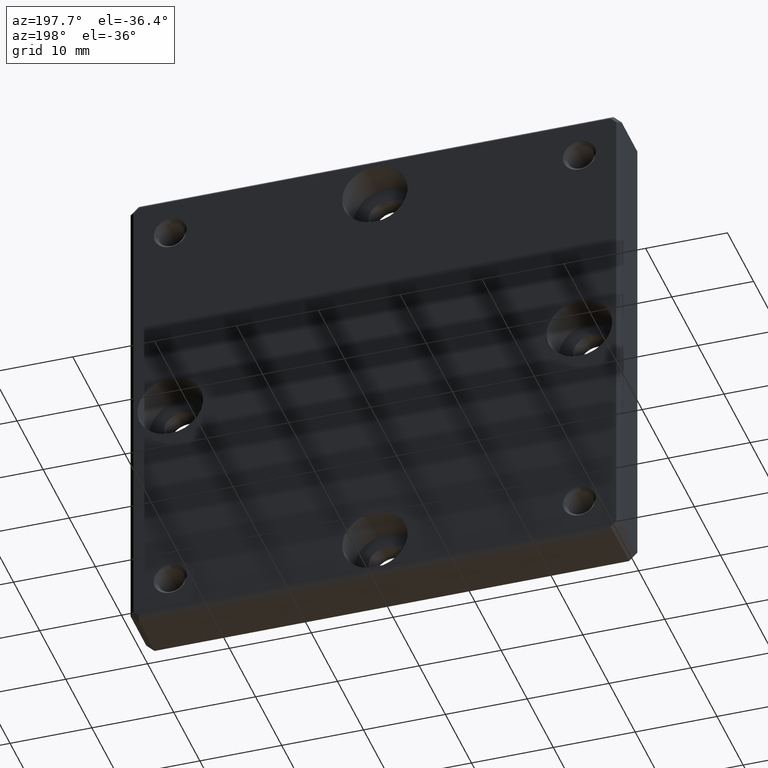
[diagram: clean part render]
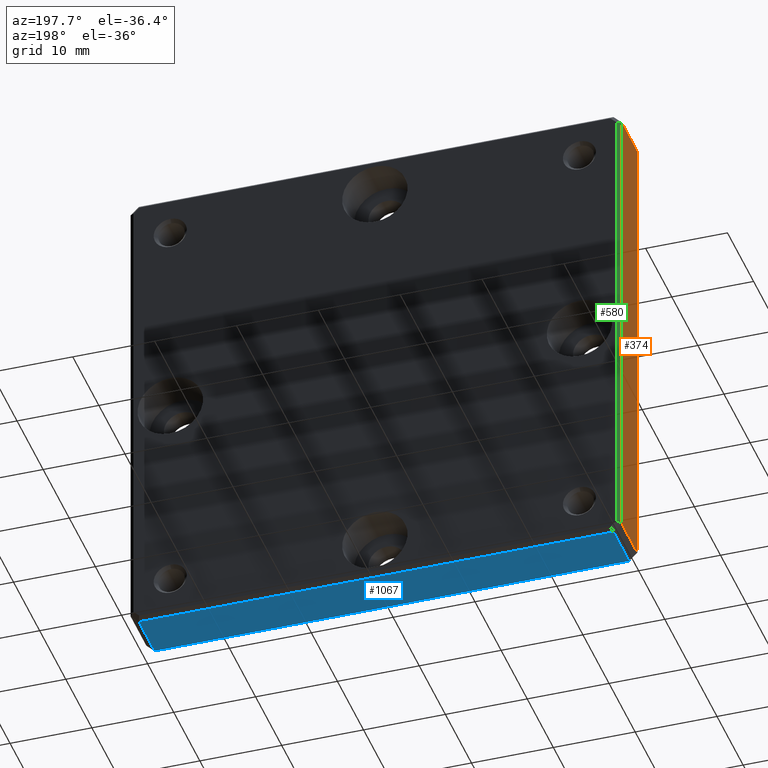
[diagram: same view with three faces highlighted in distinct colors, each labeled with its STEP entity id]
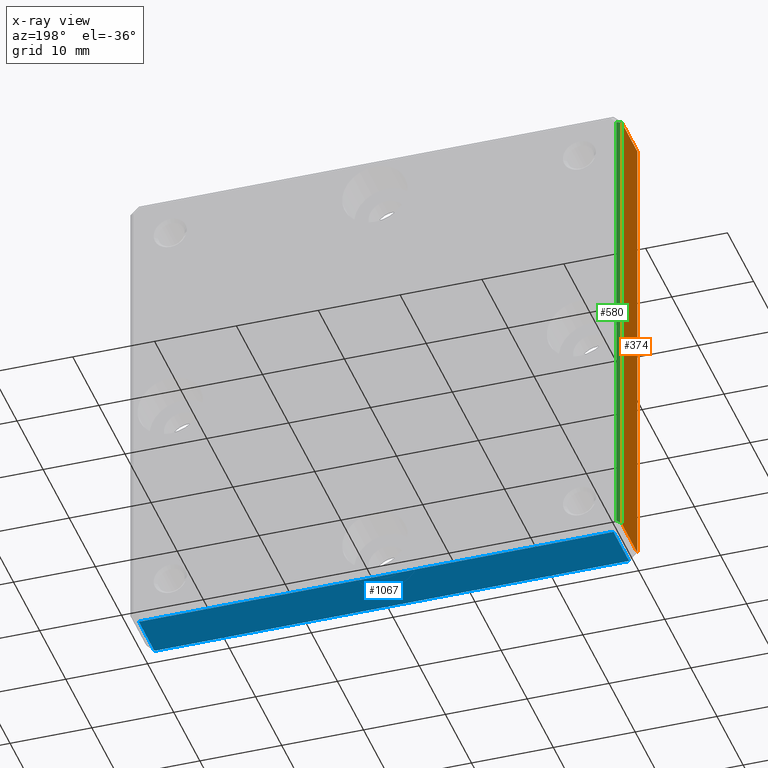
[diagram: x-ray of the same camera — body ghosted, the three highlighted faces saturated]
A machine part, auxiliary view with three faces highlighted in distinct colors.
The next image is the same camera in x-ray (body ghosted, the three faces saturated) — at least one of them is partly hidden behind the body in this view.
Their STEP definitions:

[orange] entity #374 — the highlighted planar face has unit normal (1, 0, -0).
#46 = VECTOR ( 'NONE', #925, 1000.000000000000000 ) ;
#83 = AXIS2_PLACEMENT_3D ( 'NONE', #871, #953, #654 ) ;
#142 = CARTESIAN_POINT ( 'NONE',  ( -29.99999999999999289, 0.4999999999999935052, 28.99999999999998579 ) ) ;
#167 = EDGE_CURVE ( 'NONE', #711, #650, #326, .T. ) ;
#194 = DIRECTION ( 'NONE',  ( 0.000000000000000000, -1.000000000000000000, 0.000000000000000000 ) ) ;
#202 = PLANE ( 'NONE',  #83 ) ;
#275 = ORIENTED_EDGE ( 'NONE', *, *, #935, .T. ) ;
#277 = DIRECTION ( 'NONE',  ( -1.156482317317871478E-16, 0.000000000000000000, -1.000000000000000000 ) ) ;
#311 = CARTESIAN_POINT ( 'NONE',  ( -30.00000000000000000, 6.500000000000000000, -29.00000000000001066 ) ) ;
#326 = LINE ( 'NONE', #1214, #46 ) ;
#327 = EDGE_CURVE ( 'NONE', #650, #1092, #1156, .T. ) ;
#340 = VECTOR ( 'NONE', #194, 1000.000000000000000 ) ;
#374 = ADVANCED_FACE ( 'NONE', ( #661 ), #202, .F. ) ;
#482 = LINE ( 'NONE', #682, #340 ) ;
#561 = CARTESIAN_POINT ( 'NONE',  ( -30.00000000000000000, 0.4999999999999935052, -30.00000000000000711 ) ) ;
#631 = VECTOR ( 'NONE', #277, 1000.000000000000000 ) ;
#635 = CARTESIAN_POINT ( 'NONE',  ( -29.99999999999999289, 6.500000000000000000, 28.99999999999998579 ) ) ;
#650 = VERTEX_POINT ( 'NONE', #635 ) ;
#654 = DIRECTION ( 'NONE',  ( -1.156482317317871478E-16, 0.000000000000000000, -1.000000000000000000 ) ) ;
#657 = EDGE_CURVE ( 'NONE', #734, #711, #747, .T. ) ;
#661 = FACE_OUTER_BOUND ( 'NONE', #683, .T. ) ;
#682 = CARTESIAN_POINT ( 'NONE',  ( -30.00000000000000000, 7.000000000000000000, -29.00000000000001066 ) ) ;
#683 = EDGE_LOOP ( 'NONE', ( #275, #1006, #1153, #1003 ) ) ;
#711 = VERTEX_POINT ( 'NONE', #142 ) ;
#726 = DIRECTION ( 'NONE',  ( 1.156482317317871478E-16, 0.000000000000000000, 1.000000000000000000 ) ) ;
#734 = VERTEX_POINT ( 'NONE', #1239 ) ;
#747 = LINE ( 'NONE', #561, #861 ) ;
#861 = VECTOR ( 'NONE', #726, 1000.000000000000000 ) ;
#871 = CARTESIAN_POINT ( 'NONE',  ( -30.00000000000000000, 7.000000000000000000, -30.00000000000000711 ) ) ;
#925 = DIRECTION ( 'NONE',  ( 0.000000000000000000, 1.000000000000000000, 0.000000000000000000 ) ) ;
#935 = EDGE_CURVE ( 'NONE', #1092, #734, #482, .T. ) ;
#953 = DIRECTION ( 'NONE',  ( 1.000000000000000000, 0.000000000000000000, -1.156482317317871478E-16 ) ) ;
#983 = CARTESIAN_POINT ( 'NONE',  ( -30.00000000000000000, 6.500000000000000000, -29.00000000000001066 ) ) ;
#1003 = ORIENTED_EDGE ( 'NONE', *, *, #327, .T. ) ;
#1006 = ORIENTED_EDGE ( 'NONE', *, *, #657, .T. ) ;
#1092 = VERTEX_POINT ( 'NONE', #311 ) ;
#1153 = ORIENTED_EDGE ( 'NONE', *, *, #167, .T. ) ;
#1156 = LINE ( 'NONE', #983, #631 ) ;
#1214 = CARTESIAN_POINT ( 'NONE',  ( -29.99999999999999289, 7.000000000000000000, 28.99999999999998579 ) ) ;
#1239 = CARTESIAN_POINT ( 'NONE',  ( -30.00000000000000000, 0.4999999999999935052, -29.00000000000001066 ) ) ;

[blue] entity #1067 — the highlighted planar face has unit normal (0, 0, 1).
#72 = LINE ( 'NONE', #762, #157 ) ;
#152 = DIRECTION ( 'NONE',  ( -0.000000000000000000, 1.000000000000000000, 0.000000000000000000 ) ) ;
#157 = VECTOR ( 'NONE', #436, 1000.000000000000000 ) ;
#161 = DIRECTION ( 'NONE',  ( 0.000000000000000000, 0.000000000000000000, 1.000000000000000000 ) ) ;
#176 = LINE ( 'NONE', #834, #1181 ) ;
#196 = ORIENTED_EDGE ( 'NONE', *, *, #1078, .T. ) ;
#206 = EDGE_CURVE ( 'NONE', #404, #984, #812, .T. ) ;
#305 = EDGE_CURVE ( 'NONE', #1185, #698, #435, .T. ) ;
#320 = DIRECTION ( 'NONE',  ( 0.000000000000000000, -1.000000000000000000, 0.000000000000000000 ) ) ;
#358 = CARTESIAN_POINT ( 'NONE',  ( 28.99999999999999645, 0.4999999999999935052, -30.00000000000000711 ) ) ;
#363 = PLANE ( 'NONE',  #649 ) ;
#377 = VECTOR ( 'NONE', #320, 1000.000000000000000 ) ;
#404 = VERTEX_POINT ( 'NONE', #855 ) ;
#435 = LINE ( 'NONE', #1221, #442 ) ;
#436 = DIRECTION ( 'NONE',  ( 1.000000000000000000, 0.000000000000000000, 0.000000000000000000 ) ) ;
#442 = VECTOR ( 'NONE', #152, 1000.000000000000000 ) ;
#444 = DIRECTION ( 'NONE',  ( -1.000000000000000000, 0.000000000000000000, 0.000000000000000000 ) ) ;
#552 = FACE_OUTER_BOUND ( 'NONE', #697, .T. ) ;
#611 = ORIENTED_EDGE ( 'NONE', *, *, #1043, .T. ) ;
#649 = AXIS2_PLACEMENT_3D ( 'NONE', #655, #161, #941 ) ;
#655 = CARTESIAN_POINT ( 'NONE',  ( -30.00000000000000000, 7.000000000000000000, -30.00000000000000711 ) ) ;
#697 = EDGE_LOOP ( 'NONE', ( #975, #611, #1218, #196 ) ) ;
#698 = VERTEX_POINT ( 'NONE', #757 ) ;
#757 = CARTESIAN_POINT ( 'NONE',  ( -29.00000000000000355, 6.500000000000000000, -30.00000000000000711 ) ) ;
#762 = CARTESIAN_POINT ( 'NONE',  ( 28.99999999999999645, 6.500000000000000000, -30.00000000000000711 ) ) ;
#812 = LINE ( 'NONE', #1201, #377 ) ;
#834 = CARTESIAN_POINT ( 'NONE',  ( -30.00000000000000000, 0.4999999999999935052, -30.00000000000000711 ) ) ;
#855 = CARTESIAN_POINT ( 'NONE',  ( 28.99999999999999645, 6.500000000000000000, -30.00000000000000711 ) ) ;
#941 = DIRECTION ( 'NONE',  ( 1.000000000000000000, 0.000000000000000000, -0.000000000000000000 ) ) ;
#967 = CARTESIAN_POINT ( 'NONE',  ( -29.00000000000000355, 0.4999999999999935052, -30.00000000000000711 ) ) ;
#975 = ORIENTED_EDGE ( 'NONE', *, *, #206, .T. ) ;
#984 = VERTEX_POINT ( 'NONE', #358 ) ;
#1043 = EDGE_CURVE ( 'NONE', #984, #1185, #176, .T. ) ;
#1067 = ADVANCED_FACE ( 'NONE', ( #552 ), #363, .F. ) ;
#1078 = EDGE_CURVE ( 'NONE', #698, #404, #72, .T. ) ;
#1181 = VECTOR ( 'NONE', #444, 1000.000000000000000 ) ;
#1185 = VERTEX_POINT ( 'NONE', #967 ) ;
#1201 = CARTESIAN_POINT ( 'NONE',  ( 28.99999999999999645, 7.000000000000000000, -30.00000000000000711 ) ) ;
#1218 = ORIENTED_EDGE ( 'NONE', *, *, #305, .T. ) ;
#1221 = CARTESIAN_POINT ( 'NONE',  ( -29.00000000000000355, 7.000000000000000000, -30.00000000000000711 ) ) ;

[green] entity #580 — the highlighted planar face has unit normal (-0.7071, 0.7071, 0).
#4 = AXIS2_PLACEMENT_3D ( 'NONE', #306, #1001, #901 ) ;
#28 = LINE ( 'NONE', #705, #221 ) ;
#103 = VECTOR ( 'NONE', #134, 1000.000000000000114 ) ;
#127 = CARTESIAN_POINT ( 'NONE',  ( -24.00794076169397684, 12.49205923830609777, 26.51800779695069110 ) ) ;
#134 = DIRECTION ( 'NONE',  ( -0.6785983445458440011, -0.6785983445458533270, 0.2810846377148124575 ) ) ;
#190 = CARTESIAN_POINT ( 'NONE',  ( -29.50000000000000711, 7.000000000000000000, -28.79289321881346808 ) ) ;
#219 = PLANE ( 'NONE',  #4 ) ;
#221 = VECTOR ( 'NONE', #807, 1000.000000000000000 ) ;
#277 = DIRECTION ( 'NONE',  ( -1.156482317317871478E-16, 0.000000000000000000, -1.000000000000000000 ) ) ;
#299 = ORIENTED_EDGE ( 'NONE', *, *, #752, .T. ) ;
#306 = CARTESIAN_POINT ( 'NONE',  ( -29.50000000000000355, 7.000000000000000000, 3.411622836087721145E-15 ) ) ;
#311 = CARTESIAN_POINT ( 'NONE',  ( -30.00000000000000000, 6.500000000000000000, -29.00000000000001066 ) ) ;
#327 = EDGE_CURVE ( 'NONE', #650, #1092, #1156, .T. ) ;
#330 = LINE ( 'NONE', #127, #103 ) ;
#352 = LINE ( 'NONE', #658, #1142 ) ;
#447 = DIRECTION ( 'NONE',  ( -0.6785983445458426688, -0.6785983445458522167, -0.2810846377148182307 ) ) ;
#463 = ORIENTED_EDGE ( 'NONE', *, *, #602, .F. ) ;
#519 = EDGE_LOOP ( 'NONE', ( #299, #923, #463, #536 ) ) ;
#521 = EDGE_CURVE ( 'NONE', #806, #869, #28, .T. ) ;
#536 = ORIENTED_EDGE ( 'NONE', *, *, #521, .F. ) ;
#580 = ADVANCED_FACE ( 'NONE', ( #1094 ), #219, .T. ) ;
#593 = CARTESIAN_POINT ( 'NONE',  ( -29.50000000000000000, 7.000000000000000000, 28.79289321881343966 ) ) ;
#602 = EDGE_CURVE ( 'NONE', #869, #650, #330, .T. ) ;
#631 = VECTOR ( 'NONE', #277, 1000.000000000000000 ) ;
#635 = CARTESIAN_POINT ( 'NONE',  ( -29.99999999999999289, 6.500000000000000000, 28.99999999999998579 ) ) ;
#650 = VERTEX_POINT ( 'NONE', #635 ) ;
#658 = CARTESIAN_POINT ( 'NONE',  ( -29.40462821508473468, 7.095371784915272428, -28.75338893203383250 ) ) ;
#705 = CARTESIAN_POINT ( 'NONE',  ( -29.50000000000000000, 7.000000000000000000, 28.99999999999998579 ) ) ;
#752 = EDGE_CURVE ( 'NONE', #806, #1092, #352, .T. ) ;
#806 = VERTEX_POINT ( 'NONE', #190 ) ;
#807 = DIRECTION ( 'NONE',  ( 1.156482317317871478E-16, 0.000000000000000000, 1.000000000000000000 ) ) ;
#869 = VERTEX_POINT ( 'NONE', #593 ) ;
#901 = DIRECTION ( 'NONE',  ( -1.156482317317871478E-16, 0.000000000000000000, -1.000000000000000000 ) ) ;
#923 = ORIENTED_EDGE ( 'NONE', *, *, #327, .F. ) ;
#983 = CARTESIAN_POINT ( 'NONE',  ( -30.00000000000000000, 6.500000000000000000, -29.00000000000001066 ) ) ;
#1001 = DIRECTION ( 'NONE',  ( -0.7071067811865524577, 0.7071067811865425767, 8.177564888978053335E-17 ) ) ;
#1092 = VERTEX_POINT ( 'NONE', #311 ) ;
#1094 = FACE_OUTER_BOUND ( 'NONE', #519, .T. ) ;
#1142 = VECTOR ( 'NONE', #447, 1000.000000000000227 ) ;
#1156 = LINE ( 'NONE', #983, #631 ) ;